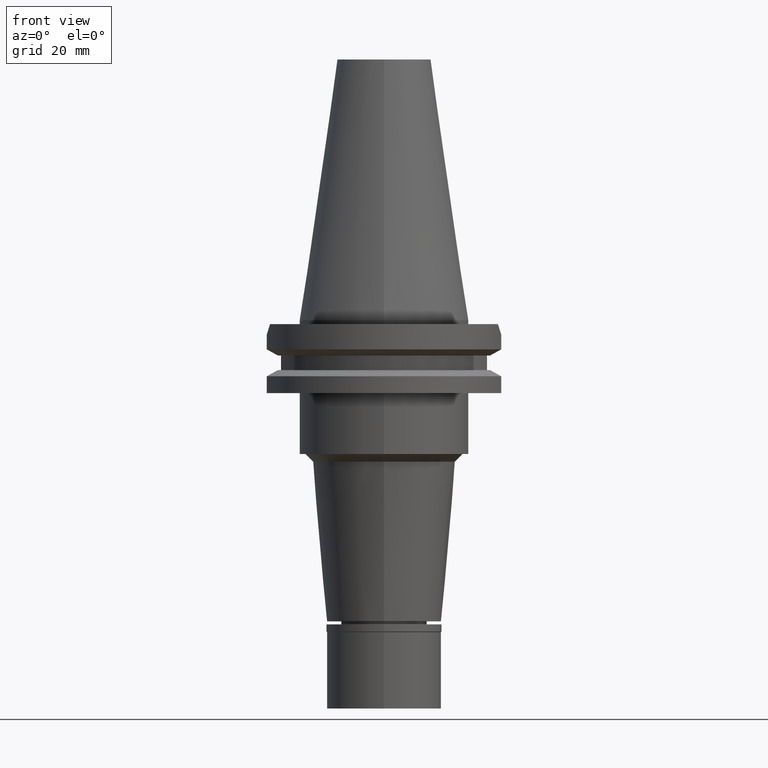
[diagram: clean part render]
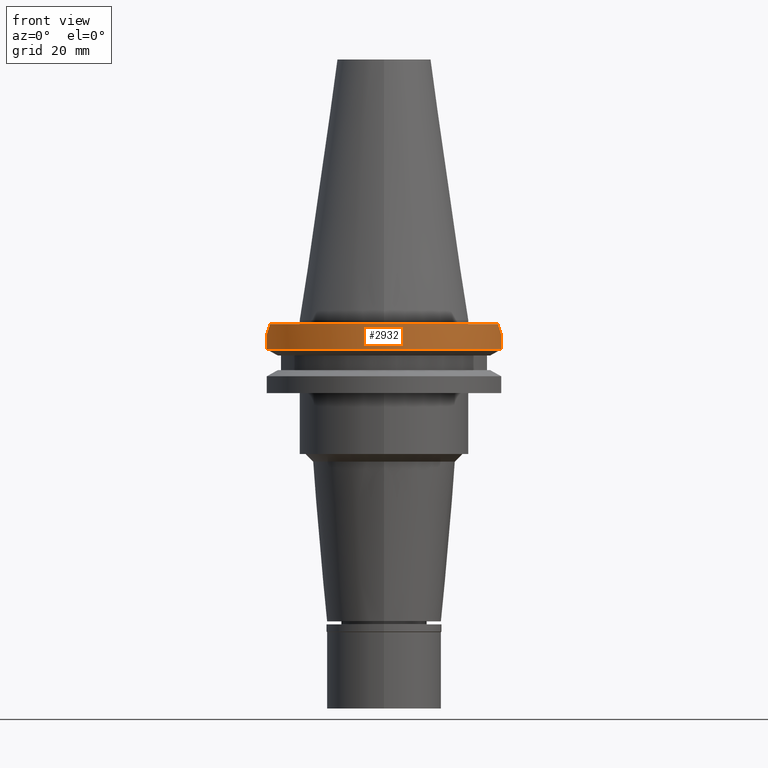
[diagram: same view with one face highlighted and labeled with its STEP entity id]
A machine part, front view. The second image highlights one B-rep face of the part: STEP entity #2932.
In plain terms, the highlighted cylindrical surface (partial cylindrical patch) has radius 31.75 mm, axis along (0, 0, -1).
Its self-contained STEP definition (entity closure, byte-faithful):
#14 = CARTESIAN_POINT ( 'NONE',  ( -30.14799306409551960, -10.00266721625513888, -1.887332783744861908 ) ) ;
#74 = DIRECTION ( 'NONE',  ( 0.0000000000000000000, -1.000000000000000000, 0.0000000000000000000 ) ) ;
#92 = CARTESIAN_POINT ( 'NONE',  ( 0.0000000000000000000, 2.160368802205999604E-14, -1.000000000000000000 ) ) ;
#114 = EDGE_CURVE ( 'NONE', #1569, #1078, #2008, .T. ) ;
#239 = CARTESIAN_POINT ( 'NONE',  ( -29.82399034335000110, -10.89000000000000057, -1.000000000001000089 ) ) ;
#267 = VECTOR ( 'NONE', #1770, 1000.000000000000114 ) ;
#470 = CIRCLE ( 'NONE', #2650, 31.74999999999998579 ) ;
#487 = CARTESIAN_POINT ( 'NONE',  ( 30.14799306409552671, -10.00266721625513888, -1.887332783744861908 ) ) ;
#509 = CARTESIAN_POINT ( 'NONE',  ( 0.0000000000000000000, 2.160368802205999604E-14, 76.40749999999999886 ) ) ;
#646 = VERTEX_POINT ( 'NONE', #1803 ) ;
#699 = DIRECTION ( 'NONE',  ( 0.0000000000000000000, 0.0000000000000000000, 1.000000000000000000 ) ) ;
#750 = AXIS2_PLACEMENT_3D ( 'NONE', #509, #3083, #3051 ) ;
#906 = DIRECTION ( 'NONE',  ( -0.9661575315241073270, -0.2579527559055020958, 0.0000000000000000000 ) ) ;
#938 = DIRECTION ( 'NONE',  ( -4.106843806486945731E-08, -1.538216116131980450E-07, -0.9999999999999872324 ) ) ;
#1009 = CARTESIAN_POINT ( 'NONE',  ( 29.82399034335000110, -10.89000000000000057, -1.000000000001000089 ) ) ;
#1028 = CARTESIAN_POINT ( 'NONE',  ( 30.67550162588999640, -8.189999999999999503, -3.700000000000000178 ) ) ;
#1052 = ORIENTED_EDGE ( 'NONE', *, *, #1828, .F. ) ;
#1078 = VERTEX_POINT ( 'NONE', #1156 ) ;
#1156 = CARTESIAN_POINT ( 'NONE',  ( -30.67550162588999640, -8.189999999999999503, -3.700000000000000178 ) ) ;
#1209 = ORIENTED_EDGE ( 'NONE', *, *, #2178, .T. ) ;
#1288 = VECTOR ( 'NONE', #938, 1000.000000000000227 ) ;
#1344 = ORIENTED_EDGE ( 'NONE', *, *, #1483, .T. ) ;
#1466 = CARTESIAN_POINT ( 'NONE',  ( 0.0000000000000000000, 1.121665249527999917E-14, -7.608163357944999206 ) ) ;
#1483 = EDGE_CURVE ( 'NONE', #646, #2497, #2082, .T. ) ;
#1569 = VERTEX_POINT ( 'NONE', #2698 ) ;
#1572 = CARTESIAN_POINT ( 'NONE',  ( 30.67550162588999640, -8.189999999999999503, -3.700000000000000178 ) ) ;
#1573 = VERTEX_POINT ( 'NONE', #2144 ) ;
#1752 = ORIENTED_EDGE ( 'NONE', *, *, #114, .F. ) ;
#1755 = CARTESIAN_POINT ( 'NONE',  ( -30.67550165918999738, -8.189999875285000286, -7.608164472449999494 ) ) ;
#1770 = DIRECTION ( 'NONE',  ( 8.520084275290995033E-09, -3.191131486843997901E-08, 0.9999999999999994449 ) ) ;
#1803 = CARTESIAN_POINT ( 'NONE',  ( 29.82399034335000110, -10.89000000000000057, -1.000000000001000089 ) ) ;
#1821 = EDGE_LOOP ( 'NONE', ( #1052, #1344, #3208, #1752, #1209, #2131 ) ) ;
#1828 = EDGE_CURVE ( 'NONE', #646, #2963, #2998, .T. ) ;
#1996 = LINE ( 'NONE', #2249, #1288 ) ;
#2008 = LINE ( 'NONE', #1755, #267 ) ;
#2053 = CARTESIAN_POINT ( 'NONE',  ( -29.82399034335000110, -10.89000000000000057, -1.000000000001000089 ) ) ;
#2082 = CIRCLE ( 'NONE', #2239, 31.75000000000000000 ) ;
#2131 = ORIENTED_EDGE ( 'NONE', *, *, #2160, .F. ) ;
#2144 = CARTESIAN_POINT ( 'NONE',  ( 30.67550146538999911, -8.190000601159001192, -7.608157985610001006 ) ) ;
#2158 = DIRECTION ( 'NONE',  ( 0.0000000000000000000, 0.0000000000000000000, -1.000000000000000000 ) ) ;
#2160 = EDGE_CURVE ( 'NONE', #2963, #1573, #1996, .T. ) ;
#2178 = EDGE_CURVE ( 'NONE', #1569, #1573, #470, .T. ) ;
#2239 = AXIS2_PLACEMENT_3D ( 'NONE', #92, #2158, #74 ) ;
#2249 = CARTESIAN_POINT ( 'NONE',  ( 30.67550162588999640, -8.189999999999999503, -3.700000000000000178 ) ) ;
#2316 = CYLINDRICAL_SURFACE ( 'NONE', #750, 31.75000000000000000 ) ;
#2485 = EDGE_CURVE ( 'NONE', #1078, #2497, #2510, .T. ) ;
#2497 = VERTEX_POINT ( 'NONE', #239 ) ;
#2510 = B_SPLINE_CURVE_WITH_KNOTS ( 'NONE', 3,
 ( #2619, #2793, #14, #2053 ),
 .UNSPECIFIED., .F., .F.,
 ( 4, 4 ),
 ( 0.0000000000000000000, 1.000000000000000000 ),
 .UNSPECIFIED. ) ;
#2581 = FACE_OUTER_BOUND ( 'NONE', #1821, .T. ) ;
#2619 = CARTESIAN_POINT ( 'NONE',  ( -30.67550162588999640, -8.189999999999999503, -3.700000000000000178 ) ) ;
#2650 = AXIS2_PLACEMENT_3D ( 'NONE', #1466, #699, #906 ) ;
#2698 = CARTESIAN_POINT ( 'NONE',  ( -30.67550165918999738, -8.189999875285000286, -7.608164472449999494 ) ) ;
#2793 = CARTESIAN_POINT ( 'NONE',  ( -30.43183015827552040, -9.102667216255303728, -2.787332783744696840 ) ) ;
#2932 = ADVANCED_FACE ( 'NONE', ( #2581 ), #2316, .T. ) ;
#2963 = VERTEX_POINT ( 'NONE', #1572 ) ;
#2998 = B_SPLINE_CURVE_WITH_KNOTS ( 'NONE', 3,
 ( #1009, #487, #3367, #1028 ),
 .UNSPECIFIED., .F., .F.,
 ( 4, 4 ),
 ( 0.0000000000000000000, 1.000000000000000000 ),
 .UNSPECIFIED. ) ;
#3051 = DIRECTION ( 'NONE',  ( 0.0000000000000000000, -1.000000000000000000, 0.0000000000000000000 ) ) ;
#3083 = DIRECTION ( 'NONE',  ( 0.0000000000000000000, 0.0000000000000000000, -1.000000000000000000 ) ) ;
#3208 = ORIENTED_EDGE ( 'NONE', *, *, #2485, .F. ) ;
#3367 = CARTESIAN_POINT ( 'NONE',  ( 30.43183015827552396, -9.102667216255303728, -2.787332783744696840 ) ) ;